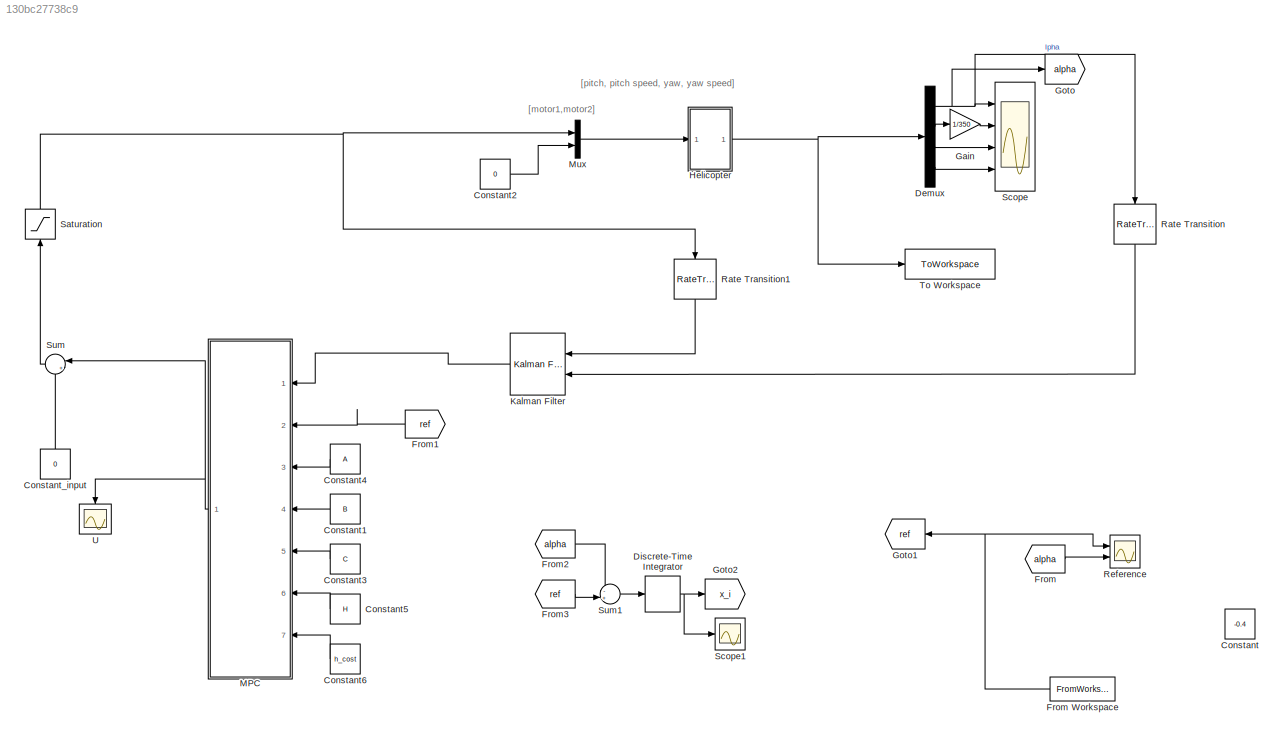
MODEL slx_130bc27738c9
KIND model
CONFIG AbsTol = auto
CONFIG EnableMultiTasking = off
CONFIG FixedStep = auto
CONFIG InitFcn = hwinit
CONFIG MaxStep = auto
CONFIG MinStep = auto
CONFIG RelTol = 1e-3
CONFIG SampleTimeConstraint = Unconstrained
CONFIG SolverName = ode45
CONFIG StartTime = 0.0
CONFIG StopTime = Tsim
BLOCK [Constant] Constant
  NameLocation = right
  Value = -0.4
BLOCK [Constant] Constant1
  NameLocation = top
  Value = B
  VectorParams1D = off
BLOCK [Constant] Constant2
  Value = 0
BLOCK [Constant] Constant3
  NameLocation = top
  Value = C
  VectorParams1D = off
BLOCK [Constant] Constant4
  NameLocation = top
  Value = A
BLOCK [Constant] Constant5
  NameLocation = top
  Value = H
BLOCK [Constant] Constant6
  NameLocation = top
  Value = h_cost
BLOCK [Constant] Constant_input
  Value = 0
BLOCK [Demux] Demux
  Ports = [1, 4]
BLOCK [DiscreteIntegrator] Discrete-Time Integrator
  ICPrevOutput = DiscIntNeverNeededParam
  ICPrevScaledInput = DiscIntNeverNeededParam
  InitialConditionSetting = Auto
  Ports = [1, 1]
  SampleTime = -1
BLOCK [From] From
  GotoTag = alpha
BLOCK [FromWorkspace] From Workspace
  NameLocation = top
  VariableName = simin
BLOCK [From] From1
  GotoTag = ref
  NameLocation = top
BLOCK [From] From2
  GotoTag = alpha
BLOCK [From] From3
  GotoTag = ref
BLOCK [Gain] Gain
  Gain = 1/350
BLOCK [Goto] Goto
  GotoTag = alpha
BLOCK [Goto] Goto1
  GotoTag = ref
  NameLocation = top
BLOCK [Goto] Goto2
  GotoTag = x_i
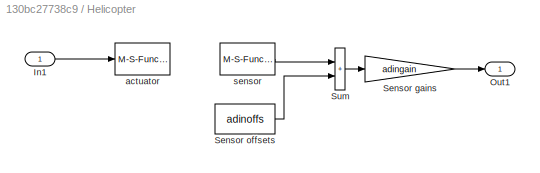
BLOCK [SubSystem] Helicopter
  Ports = [1, 1]
  RequestExecContextInheritance = off
BLOCK [Inport] Helicopter/In1
BLOCK [Outport] Helicopter/Out1
BLOCK [Gain] Helicopter/Sensor gains
  Gain = adingain
BLOCK [Constant] Helicopter/Sensor offsets
  Value = adinoffs
BLOCK [Sum] Helicopter/Sum
  IconShape = rectangular
  Ports = [2, 1]
BLOCK [M-S-Function] Helicopter/actuator
  FunctionName = sf_heli_out
  Parameters = HeliMexHandle,Ts
  Ports = [1]
BLOCK [M-S-Function] Helicopter/sensor
  FunctionName = sf_heli_in
  Parameters = HeliMexHandle
  Ports = [0, 1]
BLOCK [Reference] Kalman Filter  REF=ctrlSharedLib/Kalman Filter
  NameLocation = top
  Ports = [2, 1]
  SourceBlock = ctrlSharedLib/Kalman Filter
  SourceProductBaseCode = CT,ID
  SourceType = ctrlKalmanFilter
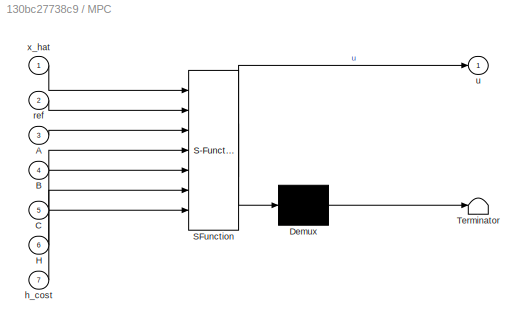
BLOCK [SubSystem] MPC
  ErrorFcn = Stateflow.Translate.translate
  NameLocation = top
  PermitHierarchicalResolution = ExplicitOnly
  Ports = [7, 1]
  RequestExecContextInheritance = off
  SFBlockType = MATLAB Function
  TreatAsAtomicUnit = on
BLOCK [Demux] MPC/ Demux 
  Outputs = 1
  Ports = [1, 1]
BLOCK [S-Function] MPC/ SFunction 
  EnableBusSupport = on
  FunctionName = sf_sfun
  PortCounts = [7 2]
  Ports = [7, 2]
  SFcnIsStateOwnerBlock = off
  SFunctionDeploymentMode = off
  Tag = Stateflow S-Function 2
BLOCK [Terminator] MPC/ Terminator 
BLOCK [Inport] MPC/A
  Port = 3
BLOCK [Inport] MPC/B
  Port = 4
BLOCK [Inport] MPC/C
  Port = 5
BLOCK [Inport] MPC/H
  Port = 6
BLOCK [Inport] MPC/h_cost
  Port = 7
BLOCK [Inport] MPC/ref
  Port = 2
BLOCK [Outport] MPC/u
BLOCK [Inport] MPC/x_hat
BLOCK [Mux] Mux
  DisplayOption = bar
  Inputs = 2
  Ports = [2, 1]
BLOCK [RateTransition] Rate Transition
  NameLocation = left
  OutPortSampleTime = h
BLOCK [RateTransition] Rate Transition1
  NameLocation = left
  OutPortSampleTime = h
BLOCK [Scope] Reference
  Floating = off
  NumInputPorts = 2
  Ports = [2]
  ScopeSpecificationString = Simulink.scopes.TimeScopeBlockCfg('CurrentConfiguration', extmgr.ConfigurationSet(extmgr.Configuration('Core','General UI',true),extmgr.Configuration('Core','Source UI',true),extmgr.Configuration('Sources','WiredSimulink',true,'DataLoggingVariableName','ScopeData1'),extmgr.Configuration('Visuals','Time Domain',true,'SerializedDisplays',{struct('MinYLimReal','-0.53939','MaxYLimReal','0.02243','YLab...<+1455ch>
BLOCK [Saturate] Saturation
  LowerLimit = -1
  NameLocation = right
  UpperLimit = 1
BLOCK [Scope] Scope
  Floating = off
  NumInputPorts = 4
  Ports = [4]
  ScopeSpecificationString = Simulink.scopes.TimeScopeBlockCfg('CurrentConfiguration', extmgr.ConfigurationSet(extmgr.Configuration('Core','General UI',true),extmgr.Configuration('Core','Source UI',true),extmgr.Configuration('Sources','WiredSimulink',true,'DataLogging',true,'DataLoggingVariableName','y','DataLoggingSaveFormat','StructureWithTime','DataLoggingDecimation','1','DataLoggingDecimateData',true),extmgr.Configuration...<+3701ch>
BLOCK [Scope] Scope1
  Floating = off
  NumInputPorts = 1
  Ports = [1]
  ScopeSpecificationString = Simulink.scopes.TimeScopeBlockCfg('CurrentConfiguration', extmgr.ConfigurationSet(extmgr.Configuration('Core','General UI',true),extmgr.Configuration('Core','Source UI',true),extmgr.Configuration('Sources','WiredSimulink',true,'DataLoggingVariableName','ScopeData2'),extmgr.Configuration('Visuals','Time Domain',true),extmgr.Configuration('Tools','Plot Navigation',true),extmgr.Configuration('Tools',...<+40ch>
BLOCK [Sum] Sum
  Inputs = |++
  NameLocation = top
  Ports = [2, 1]
BLOCK [Sum] Sum1
  Inputs = -+|
  Ports = [2, 1]
BLOCK [ToWorkspace] To Workspace
  FixptAsFi = on
  MaxDataPoints = inf
  Ports = [1]
  SampleTime = -1
  SaveFormat = Structure With Time
  VariableName = simout
BLOCK [Scope] U
  Floating = off
  NameLocation = left
  NumInputPorts = 1
  Ports = [1]
  ScopeSpecificationString = Simulink.scopes.TimeScopeBlockCfg('CurrentConfiguration', extmgr.ConfigurationSet(extmgr.Configuration('Core','General UI',true),extmgr.Configuration('Core','Source UI',true),extmgr.Configuration('Sources','WiredSimulink',true,'DataLoggingVariableName','ScopeData2'),extmgr.Configuration('Visuals','Time Domain',true,'SerializedDisplays',{struct('MinYLimReal','-0.31994','MaxYLimReal','0.54568','YLab...<+1445ch>
ANNOTATION (root): [motor1,motor2]
ANNOTATION (root): [pitch, pitch speed, yaw, yaw speed]
LINE Constant1:1 -> MPC:4
LINE Constant2:1 -> Mux:2
LINE Constant3:1 -> MPC:5
LINE Constant4:1 -> MPC:3
LINE Constant5:1 -> MPC:6
LINE Constant6:1 -> MPC:7
LINE Constant_input:1 -> Sum:2
NET Demux:1 -> Goto:1, Rate Transition:1, Scope:1
LINE Demux:2 -> Gain:1
LINE Demux:3 -> Scope:3
LINE Demux:4 -> Scope:4
NET Discrete-Time Integrator:1 -> Goto2:1, Scope1:1
NET From Workspace:1 -> Goto1:1, Reference:1
LINE From1:1 -> MPC:2
LINE From2:1 -> Sum1:1
LINE From3:1 -> Sum1:2
LINE From:1 -> Reference:2
LINE Gain:1 -> Scope:2
LINE Helicopter/In1:1 -> Helicopter/actuator:1
LINE Helicopter/Sensor gains:1 -> Helicopter/Out1:1
LINE Helicopter/Sensor offsets:1 -> Helicopter/Sum:2
LINE Helicopter/Sum:1 -> Helicopter/Sensor gains:1
LINE Helicopter/sensor:1 -> Helicopter/Sum:1
NET Helicopter:1 -> Demux:1, To Workspace:1
LINE Kalman Filter:1 -> MPC:1
NET MPC:1 -> Sum:1, U:1
LINE Mux:1 -> Helicopter:1
LINE Rate Transition1:1 -> Kalman Filter:1
LINE Rate Transition:1 -> Kalman Filter:2
NET Saturation:1 -> Mux:1, Rate Transition1:1
LINE Sum1:1 -> Discrete-Time Integrator:1
LINE Sum:1 -> Saturation:1
note: NET lines group one-source signal fan-out (src -> all destinations, sorted); 1:1 wires keep LINE
CHART MPC states=1 transitions=1
  STATE_LABEL 'eML_blk_kernel()'
  STATE_LABEL "SCRIPT:\nfunction u = fcn(x_hat, ref, A, B, C, H, h_cost)\n      \n    u = zeros(1,1); % Define the output type for the extrinsic call.\n    \n    N = 20; %prediction horizon\n    coder.extrinsic('quadprog');\n    A_OT = [eye(2)-A, -B; C, zeros(1,1)];\n    disp(size(A_OT))\n    B_OT = [zeros(2,1); ref];\n    \n    H_ots = [0 0 0;\n             0 0 0;\n             0 0 1];\n    \n    lb_ots = [-10000; 0; -1];\n   ...<+508ch>"
CHART  states=0 transitions=0
